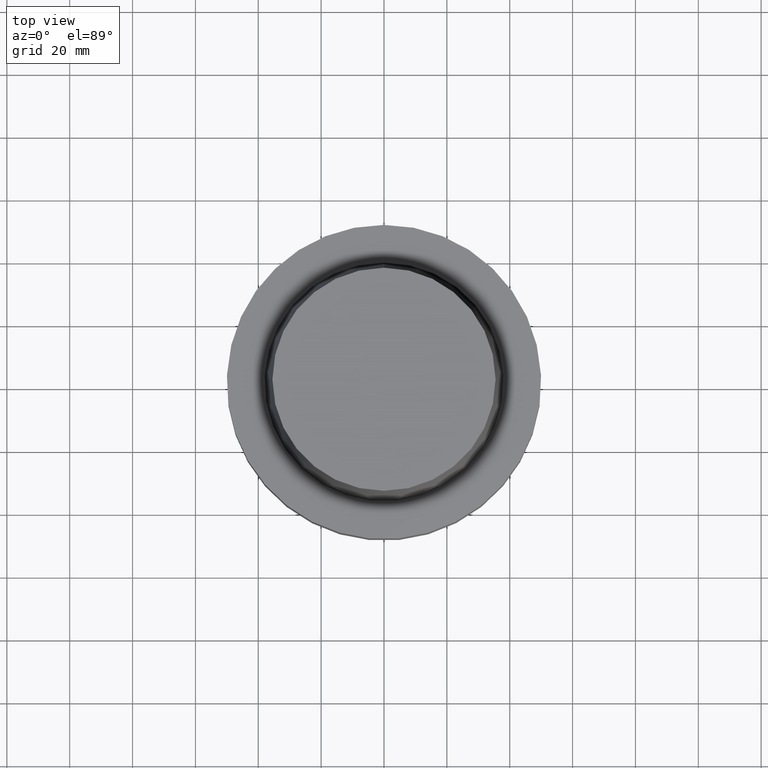
[diagram: clean part render]
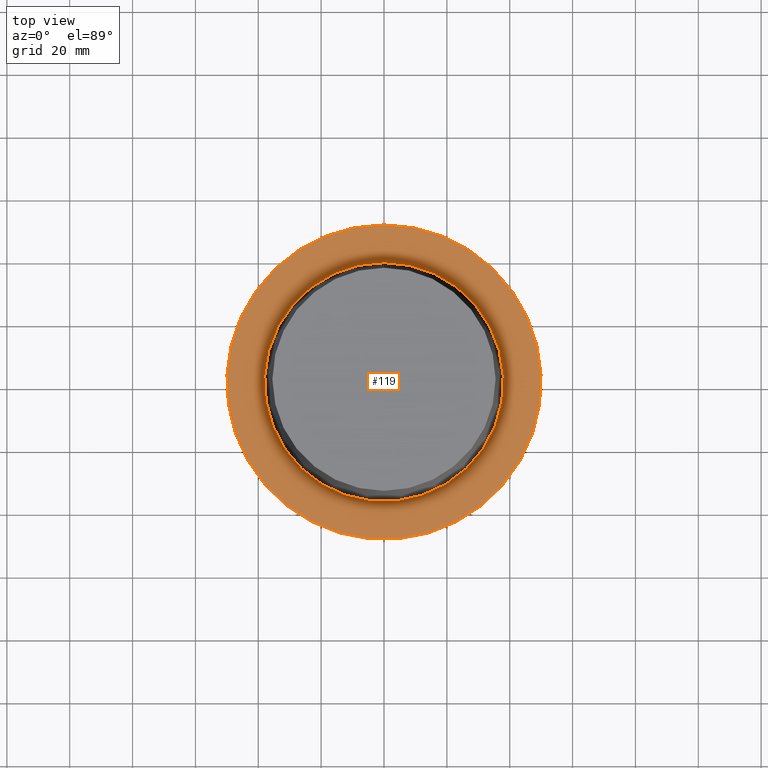
[diagram: same view with one face highlighted and labeled with its STEP entity id]
A machine part, top view. The second image highlights one B-rep face of the part: STEP entity #119.
In plain terms, the highlighted planar face has unit normal (-0, -0, 1).
Its self-contained STEP definition (entity closure, byte-faithful):
#119=ADVANCED_FACE('Unnamed[1]',(#278,#279),#280,.T.);
#136=EDGE_CURVE('Unnamed[1]',#304,#304,#305,.T.);
#163=EDGE_CURVE('Unnamed[1]',#346,#346,#347,.T.);
#278=FACE_OUTER_BOUND('',#493,.T.);
#279=FACE_BOUND('',#494,.T.);
#280=PLANE('',#495);
#304=VERTEX_POINT('',#525);
#305=CIRCLE('',#526,37.9999999999349);
#346=VERTEX_POINT('',#577);
#347=CIRCLE('',#578,50.0);
#493=EDGE_LOOP('',(#713));
#494=EDGE_LOOP('',(#714));
#495=AXIS2_PLACEMENT_3D('',#715,#716,#717);
#525=CARTESIAN_POINT('',(-3.3636548776863E-032,37.9999999999349,-2.44634216324803E-015));
#526=AXIS2_PLACEMENT_3D('',#740,#741,#742);
#577=CARTESIAN_POINT('',(-1.81547968506605E-031,50.0,-9.76766004263236E-016));
#578=AXIS2_PLACEMENT_3D('',#789,#790,#791);
#713=ORIENTED_EDGE('',*,*,#163,.F.);
#714=ORIENTED_EDGE('',*,*,#136,.T.);
#715=CARTESIAN_POINT('',(-1.07592258641734E-031,43.9999999999675,-1.71155408375563E-015));
#716=DIRECTION('',(-6.12323399573677E-017,-1.22464679914735E-016,1.0));
#717=DIRECTION('',(1.23259516440783E-032,-1.0,-1.22464679914735E-016));
#740=CARTESIAN_POINT('',(0.0,0.0,0.0));
#741=DIRECTION('',(6.12323399573677E-017,1.22464679914704E-016,-1.0));
#742=DIRECTION('',(-1.23259516440805E-032,1.0,1.22464679914704E-016));
#789=CARTESIAN_POINT('',(0.0,0.0,0.0));
#790=DIRECTION('',(6.12323399573677E-017,1.22464679914672E-016,-1.0));
#791=DIRECTION('',(-1.23259516440783E-032,1.0,1.22464679914672E-016));